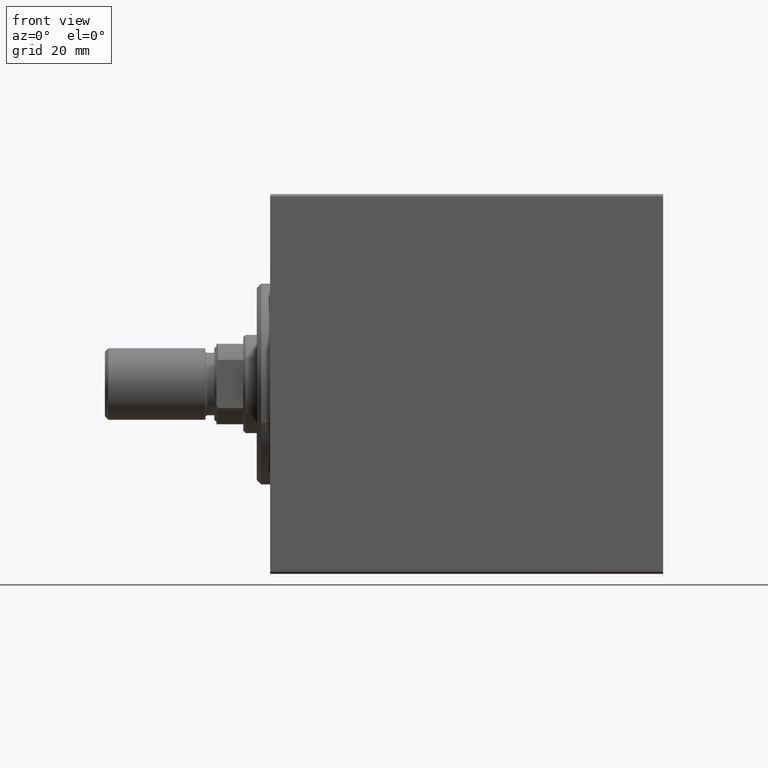
[diagram: clean part render]
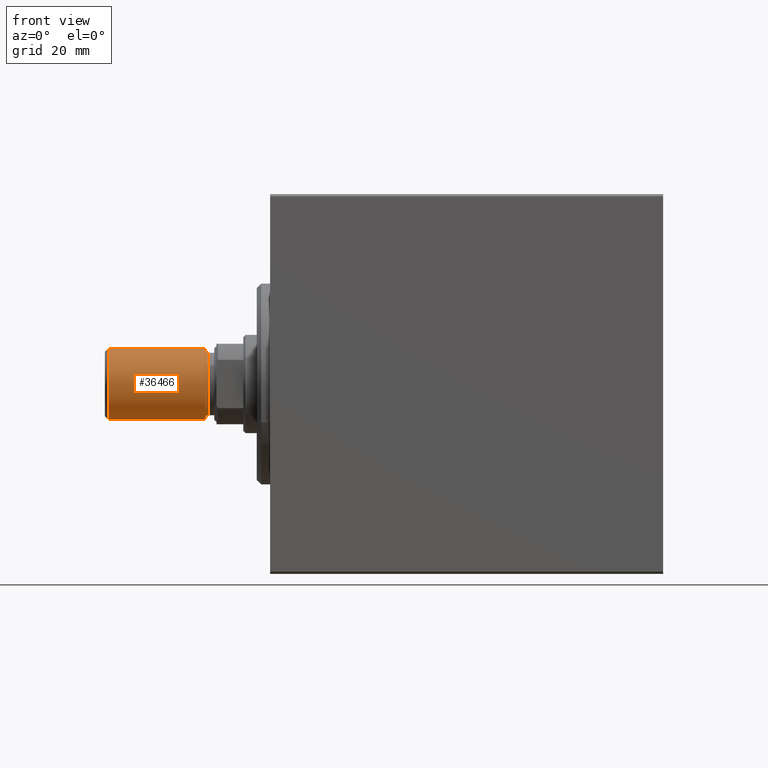
[diagram: same view with one face highlighted and labeled with its STEP entity id]
A machine part, front view. The second image highlights one B-rep face of the part: STEP entity #36466.
In plain terms, the highlighted cylindrical surface (edge-blend (fillet) strip) has radius 8 mm, axis along (-1, -0, 0).
Its self-contained STEP definition (entity closure, byte-faithful):
#3786 = VERTEX_POINT ( 'NONE', #30365 ) ;
#4277 = CARTESIAN_POINT ( 'NONE',  ( 8.000000000000000000, 9.797174393178823685E-16, 22.50000000000000000 ) ) ;
#7019 = VERTEX_POINT ( 'NONE', #39904 ) ;
#8119 = ORIENTED_EDGE ( 'NONE', *, *, #33074, .F. ) ;
#9193 = VECTOR ( 'NONE', #33674, 1000.000000000000000 ) ;
#9890 = VERTEX_POINT ( 'NONE', #23976 ) ;
#10268 = CARTESIAN_POINT ( 'NONE',  ( 8.000000000000000000, 9.797174393178823685E-16, 22.50000000000000000 ) ) ;
#10960 = CIRCLE ( 'NONE', #37528, 8.000000000000000000 ) ;
#12881 = EDGE_CURVE ( 'NONE', #7019, #9890, #10960, .T. ) ;
#13595 = EDGE_CURVE ( 'NONE', #3786, #31546, #34676, .T. ) ;
#14984 = DIRECTION ( 'NONE',  ( -1.000000000000000000, 0.000000000000000000, 0.000000000000000000 ) ) ;
#15417 = CARTESIAN_POINT ( 'NONE',  ( 0.000000000000000000, 0.000000000000000000, 0.8000000000000055955 ) ) ;
#15729 = ORIENTED_EDGE ( 'NONE', *, *, #12881, .T. ) ;
#17237 = LINE ( 'NONE', #10268, #9193 ) ;
#18365 = CARTESIAN_POINT ( 'NONE',  ( 0.000000000000000000, 0.000000000000000000, 22.50000000000000000 ) ) ;
#19429 = DIRECTION ( 'NONE',  ( -0.000000000000000000, -0.000000000000000000, -1.000000000000000000 ) ) ;
#20349 = ORIENTED_EDGE ( 'NONE', *, *, #13595, .F. ) ;
#20746 = DIRECTION ( 'NONE',  ( 1.000000000000000000, 0.000000000000000000, 0.000000000000000000 ) ) ;
#21134 = EDGE_CURVE ( 'NONE', #3786, #7019, #32931, .T. ) ;
#23976 = CARTESIAN_POINT ( 'NONE',  ( 8.000000000000000000, 9.797174393178823685E-16, 0.8000000000000055955 ) ) ;
#24569 = DIRECTION ( 'NONE',  ( 0.000000000000000000, 0.000000000000000000, 1.000000000000000000 ) ) ;
#25119 = AXIS2_PLACEMENT_3D ( 'NONE', #18365, #28485, #14984 ) ;
#26208 = ORIENTED_EDGE ( 'NONE', *, *, #21134, .T. ) ;
#28485 = DIRECTION ( 'NONE',  ( -0.000000000000000000, -0.000000000000000000, -1.000000000000000000 ) ) ;
#29143 = DIRECTION ( 'NONE',  ( 1.000000000000000000, 0.000000000000000000, 0.000000000000000000 ) ) ;
#29378 = FACE_OUTER_BOUND ( 'NONE', #36870, .T. ) ;
#29677 = AXIS2_PLACEMENT_3D ( 'NONE', #40978, #24569, #20746 ) ;
#29767 = CARTESIAN_POINT ( 'NONE',  ( -8.000000000000000000, 0.000000000000000000, 22.50000000000000000 ) ) ;
#30365 = CARTESIAN_POINT ( 'NONE',  ( -8.000000000000000000, 0.000000000000000000, 22.50000000000000000 ) ) ;
#31546 = VERTEX_POINT ( 'NONE', #4277 ) ;
#32931 = LINE ( 'NONE', #29767, #36320 ) ;
#33074 = EDGE_CURVE ( 'NONE', #31546, #9890, #17237, .T. ) ;
#33674 = DIRECTION ( 'NONE',  ( -0.000000000000000000, -0.000000000000000000, -1.000000000000000000 ) ) ;
#34676 = CIRCLE ( 'NONE', #29677, 8.000000000000000000 ) ;
#35228 = DIRECTION ( 'NONE',  ( -0.000000000000000000, -0.000000000000000000, 1.000000000000000000 ) ) ;
#36320 = VECTOR ( 'NONE', #19429, 1000.000000000000000 ) ;
#36466 = ADVANCED_FACE ( 'NONE', ( #29378 ), #39716, .T. ) ;
#36870 = EDGE_LOOP ( 'NONE', ( #8119, #20349, #26208, #15729 ) ) ;
#37528 = AXIS2_PLACEMENT_3D ( 'NONE', #15417, #35228, #29143 ) ;
#39716 = CYLINDRICAL_SURFACE ( 'NONE', #25119, 8.000000000000000000 ) ;
#39904 = CARTESIAN_POINT ( 'NONE',  ( -8.000000000000000000, 0.000000000000000000, 0.8000000000000055955 ) ) ;
#40978 = CARTESIAN_POINT ( 'NONE',  ( 0.000000000000000000, 0.000000000000000000, 22.50000000000000000 ) ) ;